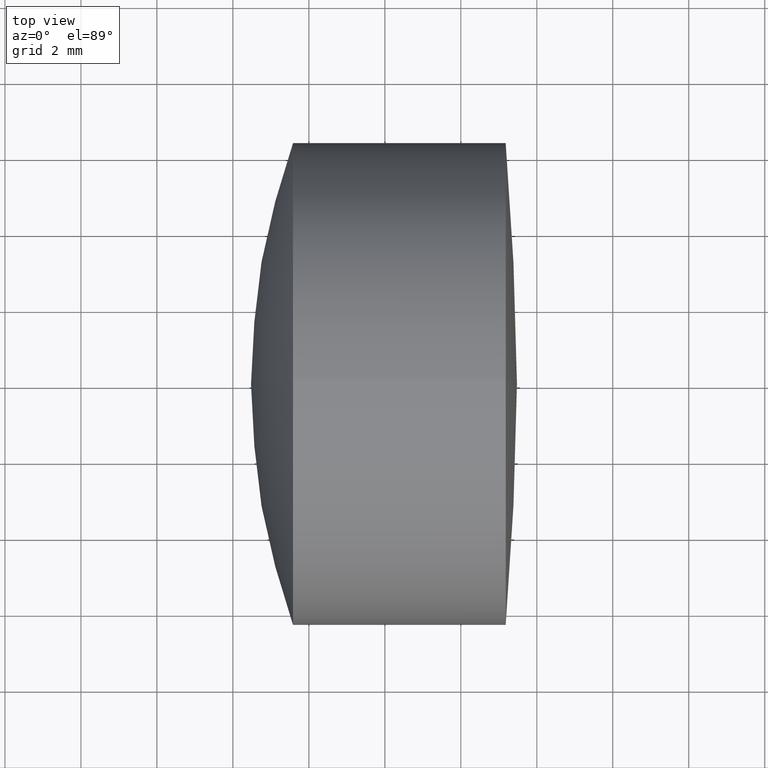
[diagram: clean part render]
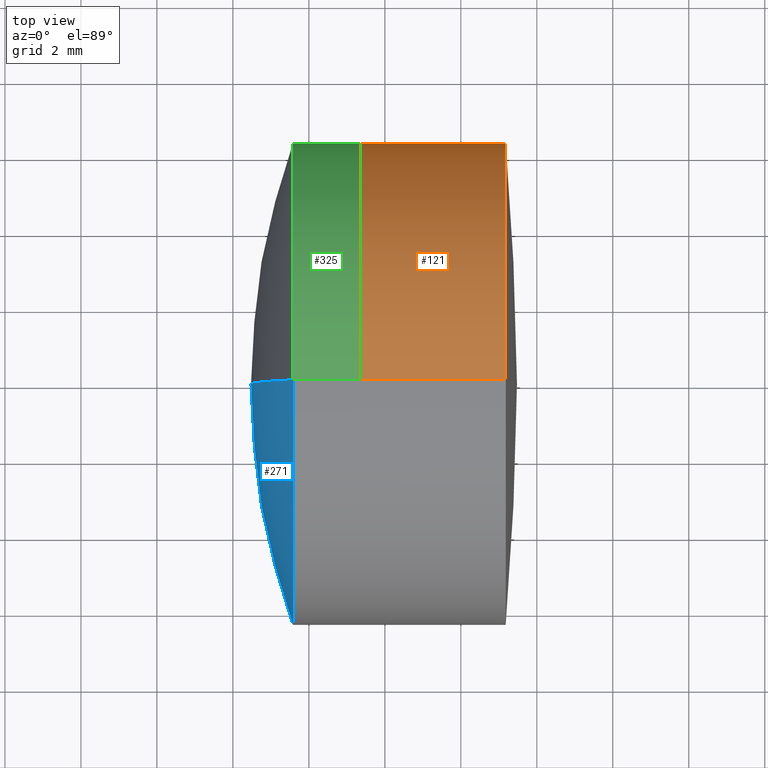
[diagram: same view with three faces highlighted in distinct colors, each labeled with its STEP entity id]
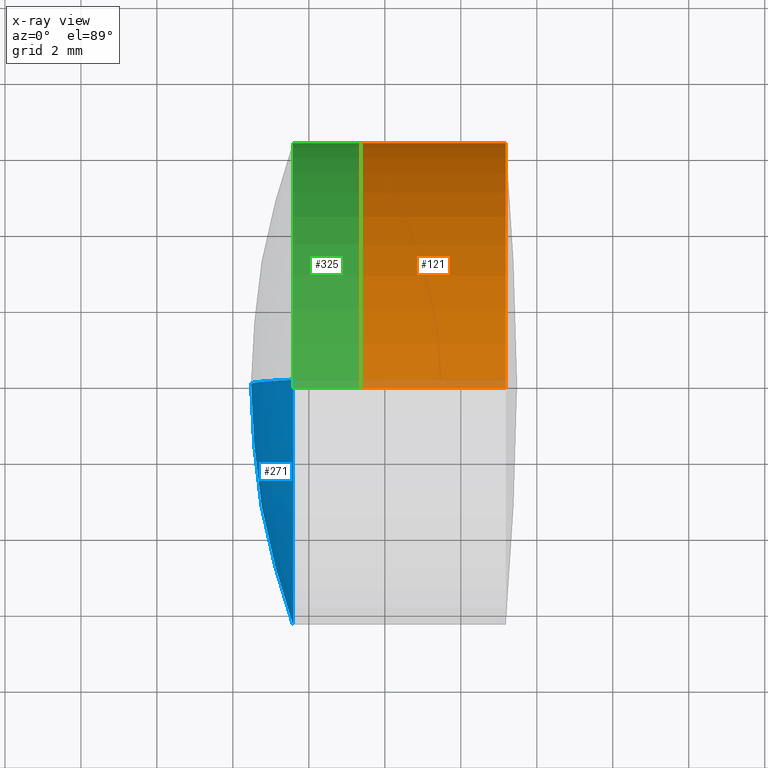
[diagram: x-ray of the same camera — body ghosted, the three highlighted faces saturated]
A machine part, top view with three faces highlighted in distinct colors.
The next image is the same camera in x-ray (body ghosted, the three faces saturated) — at least one of them is partly hidden behind the body in this view.
Their STEP definitions:

[orange] entity #121 — the highlighted cylindrical surface (partial cylindrical patch) has radius 6.35 mm, axis along (-1, -0, -0).
#17 = CARTESIAN_POINT ( 'NONE',  ( -0.6346800517470375700, 7.776507174585696100E-016, -6.350000000000003200 ) ) ;
#46 = DIRECTION ( 'NONE',  ( -1.000000000000000000, -0.0000000000000000000, -0.0000000000000000000 ) ) ;
#55 = VERTEX_POINT ( 'NONE', #84 ) ;
#59 = AXIS2_PLACEMENT_3D ( 'NONE', #330, #108, #134 ) ;
#65 = DIRECTION ( 'NONE',  ( 0.0000000000000000000, 0.0000000000000000000, 1.000000000000000000 ) ) ;
#66 = DIRECTION ( 'NONE',  ( -1.000000000000000000, -0.0000000000000000000, -0.0000000000000000000 ) ) ;
#75 = CARTESIAN_POINT ( 'NONE',  ( 3.181129220150388900, 0.0000000000000000000, 6.350000000000001400 ) ) ;
#76 = CARTESIAN_POINT ( 'NONE',  ( -0.5519199926577972300, 7.776507174585694100E-016, -6.350000000000001400 ) ) ;
#84 = CARTESIAN_POINT ( 'NONE',  ( -0.6346800517470375700, 0.0000000000000000000, 6.350000000000003200 ) ) ;
#98 = ORIENTED_EDGE ( 'NONE', *, *, #184, .T. ) ;
#102 = ORIENTED_EDGE ( 'NONE', *, *, #166, .F. ) ;
#108 = DIRECTION ( 'NONE',  ( -1.000000000000000000, -0.0000000000000000000, -0.0000000000000000000 ) ) ;
#109 = FACE_OUTER_BOUND ( 'NONE', #307, .T. ) ;
#112 = AXIS2_PLACEMENT_3D ( 'NONE', #128, #66, #65 ) ;
#115 = VECTOR ( 'NONE', #196, 1000.000000000000000 ) ;
#121 = ADVANCED_FACE ( 'NONE', ( #109 ), #320, .T. ) ;
#127 = AXIS2_PLACEMENT_3D ( 'NONE', #160, #173, #273 ) ;
#128 = CARTESIAN_POINT ( 'NONE',  ( 3.181129220150388900, 0.0000000000000000000, 0.0000000000000000000 ) ) ;
#134 = DIRECTION ( 'NONE',  ( 0.0000000000000000000, 0.0000000000000000000, 1.000000000000000000 ) ) ;
#140 = EDGE_CURVE ( 'NONE', #340, #316, #346, .T. ) ;
#144 = CARTESIAN_POINT ( 'NONE',  ( -0.5519199926577972300, 0.0000000000000000000, 6.350000000000001400 ) ) ;
#155 = CARTESIAN_POINT ( 'NONE',  ( 3.181129220150388900, 7.776507174585694100E-016, -6.350000000000001400 ) ) ;
#160 = CARTESIAN_POINT ( 'NONE',  ( -0.6346800517470375700, 0.0000000000000000000, 0.0000000000000000000 ) ) ;
#166 = EDGE_CURVE ( 'NONE', #55, #316, #327, .T. ) ;
#173 = DIRECTION ( 'NONE',  ( -1.000000000000000000, -0.0000000000000000000, -0.0000000000000000000 ) ) ;
#184 = EDGE_CURVE ( 'NONE', #322, #340, #217, .T. ) ;
#196 = DIRECTION ( 'NONE',  ( -1.000000000000000000, -0.0000000000000000000, -0.0000000000000000000 ) ) ;
#210 = ORIENTED_EDGE ( 'NONE', *, *, #257, .F. ) ;
#215 = ORIENTED_EDGE ( 'NONE', *, *, #140, .T. ) ;
#217 = CIRCLE ( 'NONE', #112, 6.350000000000001400 ) ;
#245 = LINE ( 'NONE', #144, #115 ) ;
#257 = EDGE_CURVE ( 'NONE', #322, #55, #245, .T. ) ;
#273 = DIRECTION ( 'NONE',  ( 0.0000000000000000000, 0.0000000000000000000, 1.000000000000000000 ) ) ;
#276 = VECTOR ( 'NONE', #46, 1000.000000000000000 ) ;
#307 = EDGE_LOOP ( 'NONE', ( #98, #215, #102, #210 ) ) ;
#316 = VERTEX_POINT ( 'NONE', #17 ) ;
#320 = CYLINDRICAL_SURFACE ( 'NONE', #59, 6.350000000000001400 ) ;
#322 = VERTEX_POINT ( 'NONE', #75 ) ;
#327 = CIRCLE ( 'NONE', #127, 6.350000000000002300 ) ;
#330 = CARTESIAN_POINT ( 'NONE',  ( -0.5519199926577972300, 0.0000000000000000000, 0.0000000000000000000 ) ) ;
#340 = VERTEX_POINT ( 'NONE', #155 ) ;
#346 = LINE ( 'NONE', #76, #276 ) ;

[blue] entity #271 — the highlighted spherical surface has radius 18.8 mm.
#6 = CARTESIAN_POINT ( 'NONE',  ( -2.417297294726642200, -7.776507174585684300E-016, 6.349999999999992500 ) ) ;
#10 = ORIENTED_EDGE ( 'NONE', *, *, #289, .F. ) ;
#31 = CARTESIAN_POINT ( 'NONE',  ( 15.27782915297076400, 0.0000000000000000000, 4.145716693181975100E-017 ) ) ;
#35 = CARTESIAN_POINT ( 'NONE',  ( 15.27782915297076400, 0.0000000000000000000, 4.145716693181975100E-017 ) ) ;
#40 = DIRECTION ( 'NONE',  ( -1.000000000000000000, -0.0000000000000000000, -0.0000000000000000000 ) ) ;
#44 = VERTEX_POINT ( 'NONE', #266 ) ;
#72 = AXIS2_PLACEMENT_3D ( 'NONE', #321, #116, #152 ) ;
#79 = AXIS2_PLACEMENT_3D ( 'NONE', #31, #88, #275 ) ;
#88 = DIRECTION ( 'NONE',  ( 0.0000000000000000000, -1.000000000000000000, -1.224646799147353200E-016 ) ) ;
#91 = AXIS2_PLACEMENT_3D ( 'NONE', #35, #190, #167 ) ;
#95 = SPHERICAL_SURFACE ( 'NONE', #91, 18.80000000000000100 ) ;
#114 = CIRCLE ( 'NONE', #79, 18.80000000000000100 ) ;
#116 = DIRECTION ( 'NONE',  ( 0.0000000000000000000, 1.000000000000000000, -0.0000000000000000000 ) ) ;
#120 = AXIS2_PLACEMENT_3D ( 'NONE', #199, #40, #225 ) ;
#150 = ORIENTED_EDGE ( 'NONE', *, *, #312, .T. ) ;
#151 = EDGE_CURVE ( 'NONE', #189, #44, #114, .T. ) ;
#152 = DIRECTION ( 'NONE',  ( 0.0000000000000000000, 0.0000000000000000000, 1.000000000000000000 ) ) ;
#167 = DIRECTION ( 'NONE',  ( 0.0000000000000000000, 0.0000000000000000000, -1.000000000000000000 ) ) ;
#189 = VERTEX_POINT ( 'NONE', #6 ) ;
#190 = DIRECTION ( 'NONE',  ( -0.0000000000000000000, -1.000000000000000000, -0.0000000000000000000 ) ) ;
#198 = FACE_OUTER_BOUND ( 'NONE', #290, .T. ) ;
#199 = CARTESIAN_POINT ( 'NONE',  ( -2.417297294726639600, 0.0000000000000000000, 0.0000000000000000000 ) ) ;
#222 = CARTESIAN_POINT ( 'NONE',  ( -2.417297294726642200, 0.0000000000000000000, -6.349999999999992500 ) ) ;
#225 = DIRECTION ( 'NONE',  ( 0.0000000000000000000, 0.0000000000000000000, 1.000000000000000000 ) ) ;
#232 = VERTEX_POINT ( 'NONE', #222 ) ;
#253 = CIRCLE ( 'NONE', #120, 6.349999999999999600 ) ;
#266 = CARTESIAN_POINT ( 'NONE',  ( -3.522170847029236600, 0.0000000000000000000, -1.109710824266692100E-015 ) ) ;
#271 = ADVANCED_FACE ( 'NONE', ( #198 ), #95, .T. ) ;
#275 = DIRECTION ( 'NONE',  ( 0.0000000000000000000, 1.224646799147353000E-016, -1.000000000000000000 ) ) ;
#289 = EDGE_CURVE ( 'NONE', #232, #44, #335, .T. ) ;
#290 = EDGE_LOOP ( 'NONE', ( #150, #294, #10 ) ) ;
#294 = ORIENTED_EDGE ( 'NONE', *, *, #151, .T. ) ;
#312 = EDGE_CURVE ( 'NONE', #232, #189, #253, .T. ) ;
#321 = CARTESIAN_POINT ( 'NONE',  ( 15.27782915297076400, 0.0000000000000000000, 4.145716693181975100E-017 ) ) ;
#335 = CIRCLE ( 'NONE', #72, 18.80000000000000100 ) ;

[green] entity #325 — the highlighted cylindrical surface (partial cylindrical patch) has radius 6.35 mm, axis along (-1, -0, -0).
#6 = CARTESIAN_POINT ( 'NONE',  ( -2.417297294726642200, -7.776507174585684300E-016, 6.349999999999992500 ) ) ;
#7 = VERTEX_POINT ( 'NONE', #32 ) ;
#19 = LINE ( 'NONE', #133, #129 ) ;
#20 = EDGE_CURVE ( 'NONE', #106, #189, #288, .T. ) ;
#23 = DIRECTION ( 'NONE',  ( -1.000000000000000000, -0.0000000000000000000, -0.0000000000000000000 ) ) ;
#28 = DIRECTION ( 'NONE',  ( -1.000000000000000000, -0.0000000000000000000, -0.0000000000000000000 ) ) ;
#32 = CARTESIAN_POINT ( 'NONE',  ( -0.6346800517470357900, 7.776507174585692200E-016, -6.349999999999999600 ) ) ;
#45 = DIRECTION ( 'NONE',  ( 0.0000000000000000000, 0.0000000000000000000, 1.000000000000000000 ) ) ;
#52 = CIRCLE ( 'NONE', #168, 6.349999999999999600 ) ;
#53 = FACE_OUTER_BOUND ( 'NONE', #241, .T. ) ;
#60 = CIRCLE ( 'NONE', #90, 6.349999999999999600 ) ;
#68 = EDGE_CURVE ( 'NONE', #7, #232, #19, .T. ) ;
#69 = DIRECTION ( 'NONE',  ( 0.0000000000000000000, 0.0000000000000000000, 1.000000000000000000 ) ) ;
#90 = AXIS2_PLACEMENT_3D ( 'NONE', #295, #23, #45 ) ;
#97 = VECTOR ( 'NONE', #218, 1000.000000000000000 ) ;
#106 = VERTEX_POINT ( 'NONE', #338 ) ;
#119 = EDGE_CURVE ( 'NONE', #106, #7, #60, .T. ) ;
#129 = VECTOR ( 'NONE', #304, 1000.000000000000000 ) ;
#133 = CARTESIAN_POINT ( 'NONE',  ( -9.702612178336682500, 7.776507174585692200E-016, -6.349999999999999600 ) ) ;
#159 = DIRECTION ( 'NONE',  ( -1.000000000000000000, -0.0000000000000000000, -0.0000000000000000000 ) ) ;
#168 = AXIS2_PLACEMENT_3D ( 'NONE', #264, #28, #174 ) ;
#174 = DIRECTION ( 'NONE',  ( 0.0000000000000000000, 0.0000000000000000000, 1.000000000000000000 ) ) ;
#178 = EDGE_CURVE ( 'NONE', #189, #232, #52, .T. ) ;
#181 = AXIS2_PLACEMENT_3D ( 'NONE', #341, #159, #69 ) ;
#189 = VERTEX_POINT ( 'NONE', #6 ) ;
#218 = DIRECTION ( 'NONE',  ( -1.000000000000000000, -0.0000000000000000000, -0.0000000000000000000 ) ) ;
#221 = ORIENTED_EDGE ( 'NONE', *, *, #119, .T. ) ;
#222 = CARTESIAN_POINT ( 'NONE',  ( -2.417297294726642200, 0.0000000000000000000, -6.349999999999992500 ) ) ;
#232 = VERTEX_POINT ( 'NONE', #222 ) ;
#241 = EDGE_LOOP ( 'NONE', ( #221, #319, #265, #262 ) ) ;
#262 = ORIENTED_EDGE ( 'NONE', *, *, #20, .F. ) ;
#264 = CARTESIAN_POINT ( 'NONE',  ( -2.417297294726639600, 0.0000000000000000000, 0.0000000000000000000 ) ) ;
#265 = ORIENTED_EDGE ( 'NONE', *, *, #178, .F. ) ;
#288 = LINE ( 'NONE', #292, #97 ) ;
#292 = CARTESIAN_POINT ( 'NONE',  ( -9.702612178336682500, 0.0000000000000000000, 6.349999999999999600 ) ) ;
#295 = CARTESIAN_POINT ( 'NONE',  ( -0.6346800517470357900, 0.0000000000000000000, 0.0000000000000000000 ) ) ;
#304 = DIRECTION ( 'NONE',  ( -1.000000000000000000, -0.0000000000000000000, -0.0000000000000000000 ) ) ;
#319 = ORIENTED_EDGE ( 'NONE', *, *, #68, .T. ) ;
#325 = ADVANCED_FACE ( 'NONE', ( #53 ), #342, .T. ) ;
#338 = CARTESIAN_POINT ( 'NONE',  ( -0.6346800517470357900, 0.0000000000000000000, 6.349999999999999600 ) ) ;
#341 = CARTESIAN_POINT ( 'NONE',  ( -9.702612178336682500, 0.0000000000000000000, 0.0000000000000000000 ) ) ;
#342 = CYLINDRICAL_SURFACE ( 'NONE', #181, 6.349999999999999600 ) ;